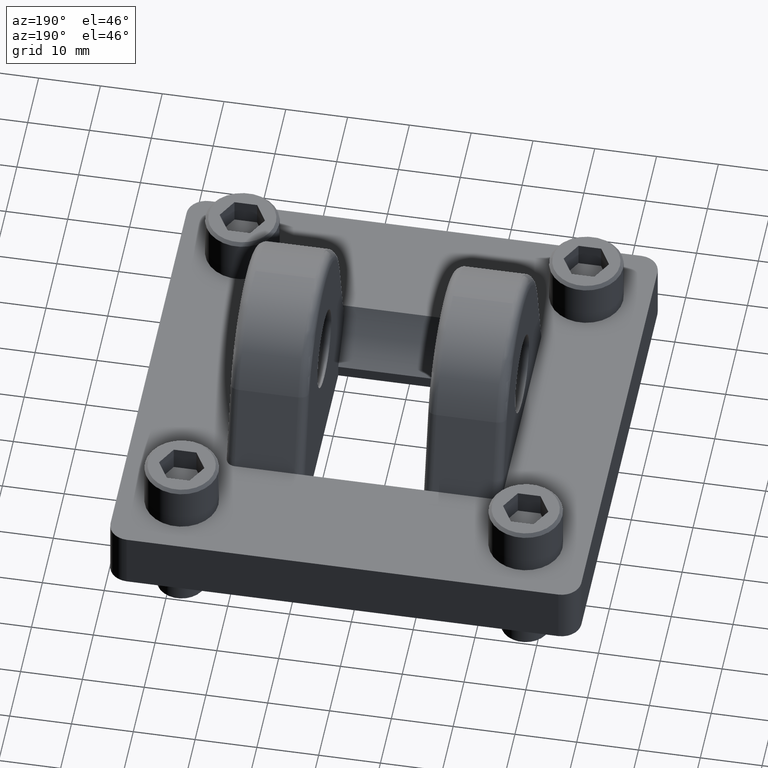
[diagram: clean part render]
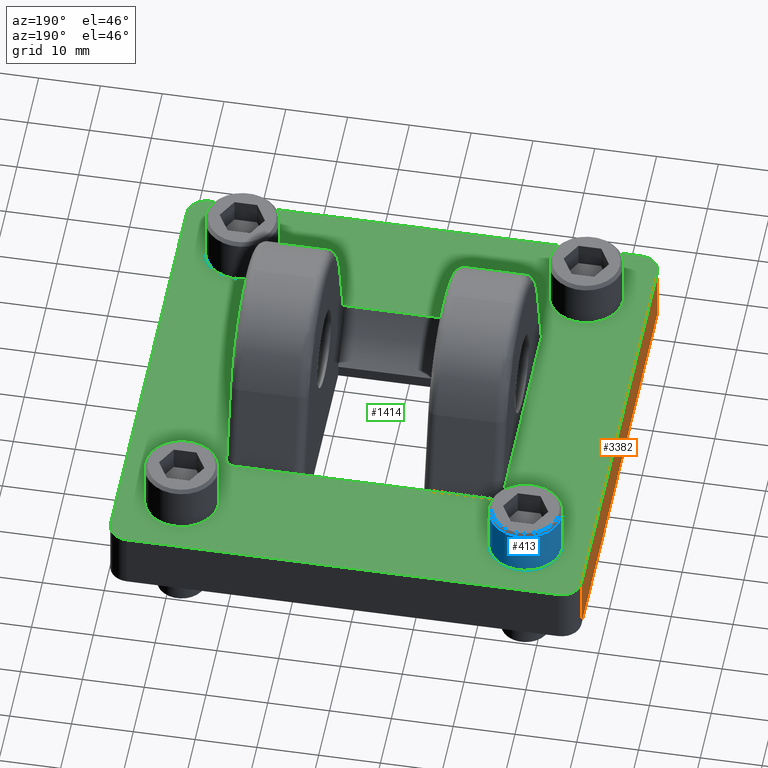
[diagram: same view with three faces highlighted in distinct colors, each labeled with its STEP entity id]
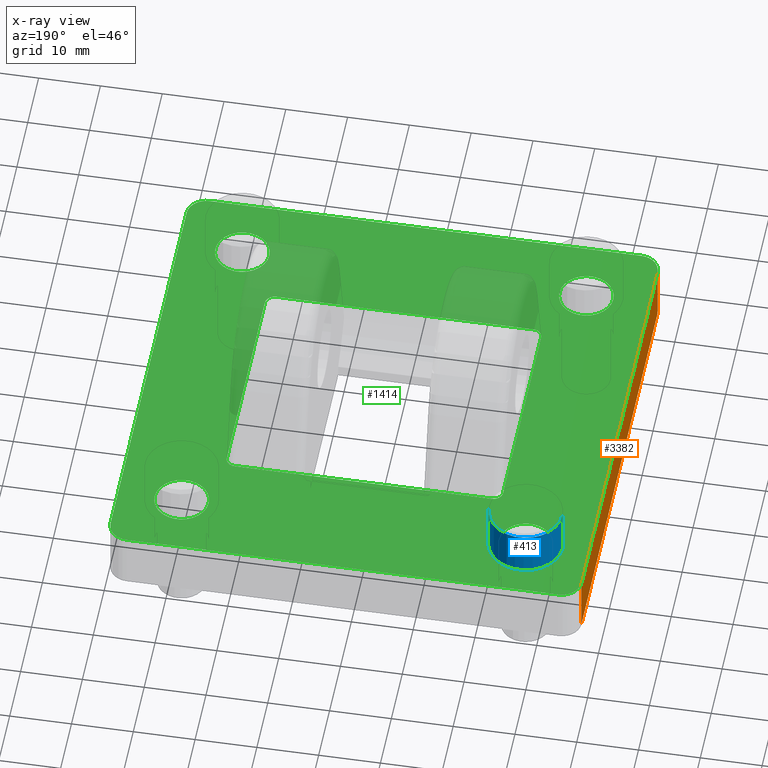
[diagram: x-ray of the same camera — body ghosted, the three highlighted faces saturated]
A machine part, auxiliary view with three faces highlighted in distinct colors.
The next image is the same camera in x-ray (body ghosted, the three faces saturated) — at least one of them is partly hidden behind the body in this view.
Their STEP definitions:

[orange] entity #3382 — the highlighted planar face has unit normal (1, 0, 0).
#51 = VECTOR ( 'NONE', #1032, 39.37007874015748143 ) ;
#59 = CARTESIAN_POINT ( 'NONE',  ( -1.500000000000000222, -1.500000000000000222, 0.3750000000000000555 ) ) ;
#97 = DIRECTION ( 'NONE',  ( -0.0000000000000000000, -1.000000000000000000, -0.0000000000000000000 ) ) ;
#185 = DIRECTION ( 'NONE',  ( 0.0000000000000000000, 0.0000000000000000000, -1.000000000000000000 ) ) ;
#221 = VECTOR ( 'NONE', #185, 39.37007874015748143 ) ;
#339 = CARTESIAN_POINT ( 'NONE',  ( -1.500000000000000222, -1.500000000000000222, 0.3750000000000000555 ) ) ;
#590 = DIRECTION ( 'NONE',  ( 0.0000000000000000000, 0.0000000000000000000, -1.000000000000000000 ) ) ;
#809 = DIRECTION ( 'NONE',  ( -0.0000000000000000000, -1.000000000000000000, -0.0000000000000000000 ) ) ;
#820 = ORIENTED_EDGE ( 'NONE', *, *, #2830, .T. ) ;
#1032 = DIRECTION ( 'NONE',  ( -0.0000000000000000000, -0.0000000000000000000, 1.000000000000000000 ) ) ;
#1142 = AXIS2_PLACEMENT_3D ( 'NONE', #339, #2022, #590 ) ;
#1157 = VERTEX_POINT ( 'NONE', #1977 ) ;
#1364 = FACE_OUTER_BOUND ( 'NONE', #1936, .T. ) ;
#1368 = VERTEX_POINT ( 'NONE', #2534 ) ;
#1578 = EDGE_CURVE ( 'NONE', #3034, #1157, #2841, .T. ) ;
#1661 = CARTESIAN_POINT ( 'NONE',  ( -1.500000000000000222, -1.375000000000000222, 0.3750000000000000555 ) ) ;
#1688 = CARTESIAN_POINT ( 'NONE',  ( -1.500000000000000222, -1.500000000000000222, 0.0000000000000000000 ) ) ;
#1761 = LINE ( 'NONE', #59, #2094 ) ;
#1790 = VECTOR ( 'NONE', #809, 39.37007874015748143 ) ;
#1936 = EDGE_LOOP ( 'NONE', ( #3093, #2221, #1960, #820 ) ) ;
#1943 = LINE ( 'NONE', #2975, #221 ) ;
#1960 = ORIENTED_EDGE ( 'NONE', *, *, #2673, .F. ) ;
#1977 = CARTESIAN_POINT ( 'NONE',  ( -1.500000000000000222, -1.375000000000000222, 0.0000000000000000000 ) ) ;
#2022 = DIRECTION ( 'NONE',  ( 1.000000000000000000, 0.0000000000000000000, 0.0000000000000000000 ) ) ;
#2094 = VECTOR ( 'NONE', #97, 39.37007874015748143 ) ;
#2221 = ORIENTED_EDGE ( 'NONE', *, *, #2857, .T. ) ;
#2534 = CARTESIAN_POINT ( 'NONE',  ( -1.500000000000000222, -1.375000000000000222, 0.3750000000000000555 ) ) ;
#2594 = PLANE ( 'NONE',  #1142 ) ;
#2673 = EDGE_CURVE ( 'NONE', #2735, #1368, #1761, .T. ) ;
#2735 = VERTEX_POINT ( 'NONE', #3047 ) ;
#2830 = EDGE_CURVE ( 'NONE', #2735, #3034, #1943, .T. ) ;
#2841 = LINE ( 'NONE', #1688, #1790 ) ;
#2857 = EDGE_CURVE ( 'NONE', #1157, #1368, #3229, .T. ) ;
#2975 = CARTESIAN_POINT ( 'NONE',  ( -1.500000000000000222, 1.375000000000000222, 0.3750000000000000555 ) ) ;
#3034 = VERTEX_POINT ( 'NONE', #3384 ) ;
#3047 = CARTESIAN_POINT ( 'NONE',  ( -1.500000000000000222, 1.374999999999999112, 0.3750000000000000555 ) ) ;
#3093 = ORIENTED_EDGE ( 'NONE', *, *, #1578, .T. ) ;
#3229 = LINE ( 'NONE', #1661, #51 ) ;
#3382 = ADVANCED_FACE ( 'NONE', ( #1364 ), #2594, .F. ) ;
#3384 = CARTESIAN_POINT ( 'NONE',  ( -1.500000000000000222, 1.374999999999999112, 0.0000000000000000000 ) ) ;

[blue] entity #413 — the highlighted cylindrical surface (partial cylindrical patch) has radius 5.9563 mm, axis along (-0, -0, -1).
#215 = CYLINDRICAL_SURFACE ( 'NONE', #826, 0.2345000000000000417 ) ;
#218 = VERTEX_POINT ( 'NONE', #2921 ) ;
#351 = CARTESIAN_POINT ( 'NONE',  ( -1.330500000000000238, 1.096000000000000085, 0.6870000000000000551 ) ) ;
#380 = VERTEX_POINT ( 'NONE', #1104 ) ;
#386 = DIRECTION ( 'NONE',  ( -0.0000000000000000000, -0.0000000000000000000, -1.000000000000000000 ) ) ;
#413 = ADVANCED_FACE ( 'NONE', ( #3271 ), #215, .T. ) ;
#677 = AXIS2_PLACEMENT_3D ( 'NONE', #770, #3326, #2215 ) ;
#770 = CARTESIAN_POINT ( 'NONE',  ( -1.096000000000000085, 1.096000000000000085, 0.3750000000000000555 ) ) ;
#826 = AXIS2_PLACEMENT_3D ( 'NONE', #3606, #1609, #1951 ) ;
#861 = DIRECTION ( 'NONE',  ( -0.0000000000000000000, -0.0000000000000000000, -1.000000000000000000 ) ) ;
#932 = ORIENTED_EDGE ( 'NONE', *, *, #3280, .T. ) ;
#997 = DIRECTION ( 'NONE',  ( 0.0000000000000000000, 0.0000000000000000000, -1.000000000000000000 ) ) ;
#1104 = CARTESIAN_POINT ( 'NONE',  ( -1.330500000000000238, 1.096000000000000085, 0.6670000000000000373 ) ) ;
#1134 = CARTESIAN_POINT ( 'NONE',  ( -0.8615000000000000435, 1.096000000000000085, 0.6870000000000000551 ) ) ;
#1296 = CARTESIAN_POINT ( 'NONE',  ( -1.096000000000000085, 1.096000000000000085, 0.6670000000000000373 ) ) ;
#1322 = ORIENTED_EDGE ( 'NONE', *, *, #3494, .F. ) ;
#1353 = VERTEX_POINT ( 'NONE', #2570 ) ;
#1477 = CIRCLE ( 'NONE', #2130, 0.2345000000000000417 ) ;
#1601 = VECTOR ( 'NONE', #861, 39.37007874015748143 ) ;
#1609 = DIRECTION ( 'NONE',  ( -0.0000000000000000000, -0.0000000000000000000, -1.000000000000000000 ) ) ;
#1611 = EDGE_CURVE ( 'NONE', #218, #2116, #3033, .T. ) ;
#1951 = DIRECTION ( 'NONE',  ( -1.000000000000000000, 0.0000000000000000000, 0.0000000000000000000 ) ) ;
#2002 = CARTESIAN_POINT ( 'NONE',  ( -0.8615000000000000435, 1.096000000000000085, 0.3750000000000000555 ) ) ;
#2047 = VECTOR ( 'NONE', #386, 39.37007874015748143 ) ;
#2116 = VERTEX_POINT ( 'NONE', #2002 ) ;
#2130 = AXIS2_PLACEMENT_3D ( 'NONE', #1296, #997, #2141 ) ;
#2141 = DIRECTION ( 'NONE',  ( 1.000000000000000000, 0.0000000000000000000, 0.0000000000000000000 ) ) ;
#2215 = DIRECTION ( 'NONE',  ( 1.000000000000000000, 0.0000000000000000000, 0.0000000000000000000 ) ) ;
#2418 = EDGE_CURVE ( 'NONE', #380, #218, #1477, .T. ) ;
#2506 = CIRCLE ( 'NONE', #677, 0.2345000000000000417 ) ;
#2570 = CARTESIAN_POINT ( 'NONE',  ( -1.330500000000000238, 1.096000000000000085, 0.3750000000000000555 ) ) ;
#2699 = ORIENTED_EDGE ( 'NONE', *, *, #1611, .T. ) ;
#2828 = LINE ( 'NONE', #351, #2047 ) ;
#2921 = CARTESIAN_POINT ( 'NONE',  ( -0.8615000000000000435, 1.096000000000000085, 0.6670000000000000373 ) ) ;
#2992 = EDGE_LOOP ( 'NONE', ( #3114, #2699, #932, #1322 ) ) ;
#3033 = LINE ( 'NONE', #1134, #1601 ) ;
#3114 = ORIENTED_EDGE ( 'NONE', *, *, #2418, .T. ) ;
#3271 = FACE_OUTER_BOUND ( 'NONE', #2992, .T. ) ;
#3280 = EDGE_CURVE ( 'NONE', #2116, #1353, #2506, .T. ) ;
#3326 = DIRECTION ( 'NONE',  ( 0.0000000000000000000, 0.0000000000000000000, 1.000000000000000000 ) ) ;
#3494 = EDGE_CURVE ( 'NONE', #380, #1353, #2828, .T. ) ;
#3606 = CARTESIAN_POINT ( 'NONE',  ( -1.096000000000000085, 1.096000000000000085, 0.6870000000000000551 ) ) ;

[green] entity #1414 — the highlighted planar face has unit normal (0, 0, -1).
#2 = DIRECTION ( 'NONE',  ( -1.000000000000000000, -0.0000000000000000000, -0.0000000000000000000 ) ) ;
#12 =( BOUNDED_CURVE ( )  B_SPLINE_CURVE ( 3, ( #776, #1917, #2479, #849 ),
 .UNSPECIFIED., .F., .T. ) 
 B_SPLINE_CURVE_WITH_KNOTS ( ( 4, 4 ),
 ( 1.570796326794898778, 3.141592653589793116 ),
 .UNSPECIFIED. ) 
 CURVE ( )  GEOMETRIC_REPRESENTATION_ITEM ( )  RATIONAL_B_SPLINE_CURVE ( ( 1.000000000000000000, 0.8047378541243654926, 0.8047378541243654926, 1.000000000000000000 ) ) 
 REPRESENTATION_ITEM ( '' )  );
#34 = VECTOR ( 'NONE', #398, 39.37007874015748143 ) ;
#49 = CARTESIAN_POINT ( 'NONE',  ( 1.374999999999999112, 1.500000000000000222, 0.3750000000000000555 ) ) ;
#56 = CARTESIAN_POINT ( 'NONE',  ( -0.9241250000000005294, 1.096000000000000085, 0.3750000000000000555 ) ) ;
#59 = CARTESIAN_POINT ( 'NONE',  ( -1.500000000000000222, -1.500000000000000222, 0.3750000000000000555 ) ) ;
#88 = DIRECTION ( 'NONE',  ( 1.000000000000000000, 0.0000000000000000000, 0.0000000000000000000 ) ) ;
#92 = LINE ( 'NONE', #3407, #3506 ) ;
#97 = DIRECTION ( 'NONE',  ( -0.0000000000000000000, -1.000000000000000000, -0.0000000000000000000 ) ) ;
#137 = DIRECTION ( 'NONE',  ( 1.000000000000000000, -0.0000000000000000000, -0.0000000000000000000 ) ) ;
#142 = CARTESIAN_POINT ( 'NONE',  ( -1.375000000000000222, 1.500000000000000222, 0.3750000000000000555 ) ) ;
#143 = CIRCLE ( 'NONE', #1802, 0.1718749999999997780 ) ;
#157 = CARTESIAN_POINT ( 'NONE',  ( 0.8199999999999999512, -0.7500000000000001110, 0.3750000000000001110 ) ) ;
#161 = EDGE_CURVE ( 'NONE', #3500, #1244, #672, .T. ) ;
#167 = EDGE_CURVE ( 'NONE', #1244, #3500, #3515, .T. ) ;
#180 = VERTEX_POINT ( 'NONE', #3258 ) ;
#184 = EDGE_CURVE ( 'NONE', #2777, #3004, #143, .T. ) ;
#187 = CARTESIAN_POINT ( 'NONE',  ( 1.374999999999999112, -1.500000000000000222, 0.3750000000000000555 ) ) ;
#191 = EDGE_CURVE ( 'NONE', #3406, #801, #3196, .T. ) ;
#195 = VECTOR ( 'NONE', #3191, 39.37007874015748143 ) ;
#209 = ORIENTED_EDGE ( 'NONE', *, *, #1119, .F. ) ;
#210 = ORIENTED_EDGE ( 'NONE', *, *, #521, .T. ) ;
#224 = VERTEX_POINT ( 'NONE', #142 ) ;
#240 = DIRECTION ( 'NONE',  ( 0.0000000000000000000, 1.000000000000000000, 0.0000000000000000000 ) ) ;
#264 = AXIS2_PLACEMENT_3D ( 'NONE', #2167, #1251, #2427 ) ;
#284 = EDGE_CURVE ( 'NONE', #2357, #1825, #296, .T. ) ;
#286 = CARTESIAN_POINT ( 'NONE',  ( -0.4399999999999999467, 0.7500000000000003331, 0.3750000000000000555 ) ) ;
#296 = LINE ( 'NONE', #3301, #2659 ) ;
#315 = CARTESIAN_POINT ( 'NONE',  ( -0.8800000000000000044, -0.0000000000000000000, 0.3750000000000000555 ) ) ;
#336 = DIRECTION ( 'NONE',  ( -1.000000000000000000, 0.0000000000000000000, 0.0000000000000000000 ) ) ;
#340 = DIRECTION ( 'NONE',  ( -1.000000000000000000, 0.0000000000000000000, 0.0000000000000000000 ) ) ;
#342 = CARTESIAN_POINT ( 'NONE',  ( -0.8199999999999998401, 0.7500000000000002220, 0.3750000000000001110 ) ) ;
#397 = CARTESIAN_POINT ( 'NONE',  ( 1.267874999999999863, -1.096000000000000307, 0.3750000000000000555 ) ) ;
#398 = DIRECTION ( 'NONE',  ( -1.000000000000000000, -0.0000000000000000000, -0.0000000000000000000 ) ) ;
#400 = EDGE_LOOP ( 'NONE', ( #1559, #1874 ) ) ;
#407 = ORIENTED_EDGE ( 'NONE', *, *, #2859, .T. ) ;
#422 = AXIS2_PLACEMENT_3D ( 'NONE', #1819, #2309, #3466 ) ;
#428 = CARTESIAN_POINT ( 'NONE',  ( -0.8199999999999998401, -0.7500000000000001110, 0.3750000000000001110 ) ) ;
#432 = VERTEX_POINT ( 'NONE', #3564 ) ;
#485 = CARTESIAN_POINT ( 'NONE',  ( -0.8199999999999998401, -0.7500000000000001110, 0.3750000000000001110 ) ) ;
#487 = VERTEX_POINT ( 'NONE', #3296 ) ;
#501 = EDGE_LOOP ( 'NONE', ( #2607, #3217 ) ) ;
#521 = EDGE_CURVE ( 'NONE', #2227, #612, #2017, .T. ) ;
#526 = VERTEX_POINT ( 'NONE', #1453 ) ;
#561 = AXIS2_PLACEMENT_3D ( 'NONE', #1526, #2676, #3465 ) ;
#609 = DIRECTION ( 'NONE',  ( -1.000000000000000000, -0.0000000000000000000, -0.0000000000000000000 ) ) ;
#612 = VERTEX_POINT ( 'NONE', #2040 ) ;
#672 = CIRCLE ( 'NONE', #264, 0.1718749999999997780 ) ;
#685 = ORIENTED_EDGE ( 'NONE', *, *, #161, .T. ) ;
#729 = VECTOR ( 'NONE', #609, 39.37007874015748143 ) ;
#740 = VERTEX_POINT ( 'NONE', #2102 ) ;
#747 = CARTESIAN_POINT ( 'NONE',  ( -1.267874999999999863, -1.096000000000000307, 0.3750000000000000555 ) ) ;
#761 = CARTESIAN_POINT ( 'NONE',  ( -0.8800000000000000044, -0.6878115294937452440, 0.3750000000000000555 ) ) ;
#776 = CARTESIAN_POINT ( 'NONE',  ( -0.8800000000000000044, 0.6878115294937456881, 0.3750000000000000555 ) ) ;
#787 = AXIS2_PLACEMENT_3D ( 'NONE', #2286, #1090, #3358 ) ;
#801 = VERTEX_POINT ( 'NONE', #428 ) ;
#849 = CARTESIAN_POINT ( 'NONE',  ( -0.8199999999999998401, 0.7500000000000002220, 0.3750000000000001110 ) ) ;
#854 = EDGE_CURVE ( 'NONE', #740, #1825, #12, .T. ) ;
#858 = DIRECTION ( 'NONE',  ( 0.0000000000000000000, 0.0000000000000000000, -1.000000000000000000 ) ) ;
#883 = ORIENTED_EDGE ( 'NONE', *, *, #2105, .T. ) ;
#902 = ORIENTED_EDGE ( 'NONE', *, *, #1447, .F. ) ;
#903 = DIRECTION ( 'NONE',  ( -1.000000000000000000, -0.0000000000000000000, -0.0000000000000000000 ) ) ;
#916 = DIRECTION ( 'NONE',  ( -0.0000000000000000000, -0.0000000000000000000, 1.000000000000000000 ) ) ;
#917 = LINE ( 'NONE', #1470, #1984 ) ;
#922 = CARTESIAN_POINT ( 'NONE',  ( -1.375000000000000222, -1.500000000000000222, 0.3750000000000000555 ) ) ;
#948 = FACE_BOUND ( 'NONE', #501, .T. ) ;
#966 = EDGE_CURVE ( 'NONE', #1077, #3542, #92, .T. ) ;
#972 = EDGE_CURVE ( 'NONE', #1368, #991, #1671, .T. ) ;
#980 = DIRECTION ( 'NONE',  ( 0.0000000000000000000, 0.0000000000000000000, -1.000000000000000000 ) ) ;
#991 = VERTEX_POINT ( 'NONE', #922 ) ;
#1013 = CARTESIAN_POINT ( 'NONE',  ( -1.096000000000000085, 1.096000000000000085, 0.3750000000000000555 ) ) ;
#1067 = AXIS2_PLACEMENT_3D ( 'NONE', #2245, #2740, #1391 ) ;
#1077 = VERTEX_POINT ( 'NONE', #157 ) ;
#1090 = DIRECTION ( 'NONE',  ( 0.0000000000000000000, 0.0000000000000000000, -1.000000000000000000 ) ) ;
#1091 = LINE ( 'NONE', #315, #1760 ) ;
#1092 = CARTESIAN_POINT ( 'NONE',  ( 1.096000000000000085, 1.096000000000000085, 0.3750000000000000555 ) ) ;
#1119 = EDGE_CURVE ( 'NONE', #180, #432, #3170, .T. ) ;
#1120 =( BOUNDED_CURVE ( )  B_SPLINE_CURVE ( 3, ( #1656, #1697, #2201, #3303 ),
 .UNSPECIFIED., .F., .T. ) 
 B_SPLINE_CURVE_WITH_KNOTS ( ( 4, 4 ),
 ( 1.570796326794896558, 3.141592653589793116 ),
 .UNSPECIFIED. ) 
 CURVE ( )  GEOMETRIC_REPRESENTATION_ITEM ( )  RATIONAL_B_SPLINE_CURVE ( ( 1.000000000000000000, 0.8047378541243649375, 0.8047378541243649375, 1.000000000000000000 ) ) 
 REPRESENTATION_ITEM ( '' )  );
#1132 = DIRECTION ( 'NONE',  ( 1.000000000000000000, -0.0000000000000000000, -0.0000000000000000000 ) ) ;
#1158 = ORIENTED_EDGE ( 'NONE', *, *, #3007, .T. ) ;
#1190 = DIRECTION ( 'NONE',  ( -1.000000000000000000, 0.0000000000000000000, 0.0000000000000000000 ) ) ;
#1194 = CIRCLE ( 'NONE', #561, 0.1249999999999999029 ) ;
#1208 = EDGE_CURVE ( 'NONE', #526, #2126, #2654, .T. ) ;
#1210 = CARTESIAN_POINT ( 'NONE',  ( 1.267874999999999863, 1.096000000000000085, 0.3750000000000000555 ) ) ;
#1224 = EDGE_CURVE ( 'NONE', #180, #1077, #1120, .T. ) ;
#1243 = CARTESIAN_POINT ( 'NONE',  ( 0.8800000000000000044, 0.0000000000000000000, 0.3750000000000000555 ) ) ;
#1244 = VERTEX_POINT ( 'NONE', #56 ) ;
#1251 = DIRECTION ( 'NONE',  ( 0.0000000000000000000, 0.0000000000000000000, -1.000000000000000000 ) ) ;
#1276 = CARTESIAN_POINT ( 'NONE',  ( 0.8800000000000000044, 0.7500000000000002220, 0.3750000000000001110 ) ) ;
#1293 = AXIS2_PLACEMENT_3D ( 'NONE', #3441, #3389, #1190 ) ;
#1302 = ORIENTED_EDGE ( 'NONE', *, *, #167, .T. ) ;
#1337 = LINE ( 'NONE', #3516, #2107 ) ;
#1356 = DIRECTION ( 'NONE',  ( -0.0000000000000000000, -0.0000000000000000000, 1.000000000000000000 ) ) ;
#1368 = VERTEX_POINT ( 'NONE', #2534 ) ;
#1391 = DIRECTION ( 'NONE',  ( -1.000000000000000000, 0.0000000000000000000, 0.0000000000000000000 ) ) ;
#1411 = DIRECTION ( 'NONE',  ( 0.0000000000000000000, 0.0000000000000000000, -1.000000000000000000 ) ) ;
#1414 = ADVANCED_FACE ( 'NONE', ( #2581, #2644, #948, #3125, #3160, #3181 ), #1468, .F. ) ;
#1447 = EDGE_CURVE ( 'NONE', #2642, #3470, #1885, .T. ) ;
#1453 = CARTESIAN_POINT ( 'NONE',  ( 0.9241250000000005294, -1.096000000000000307, 0.3750000000000000555 ) ) ;
#1468 = PLANE ( 'NONE',  #422 ) ;
#1470 = CARTESIAN_POINT ( 'NONE',  ( -1.500000000000000222, -1.500000000000000222, 0.3750000000000000555 ) ) ;
#1488 = CARTESIAN_POINT ( 'NONE',  ( 0.4399999999999999467, 0.7500000000000002220, 0.3750000000000001110 ) ) ;
#1507 = CARTESIAN_POINT ( 'NONE',  ( 0.4400000000000000022, -0.7500000000000002220, 0.3750000000000000555 ) ) ;
#1526 = CARTESIAN_POINT ( 'NONE',  ( 1.375000000000000222, 1.375000000000000222, 0.3750000000000000555 ) ) ;
#1538 = EDGE_CURVE ( 'NONE', #487, #2930, #3568, .T. ) ;
#1559 = ORIENTED_EDGE ( 'NONE', *, *, #1208, .T. ) ;
#1574 = CARTESIAN_POINT ( 'NONE',  ( 0.8800000000000000044, -0.7500000000000001110, 0.3750000000000001110 ) ) ;
#1598 = DIRECTION ( 'NONE',  ( 0.0000000000000000000, 1.000000000000000000, 0.0000000000000000000 ) ) ;
#1608 = VERTEX_POINT ( 'NONE', #49 ) ;
#1630 =( BOUNDED_CURVE ( )  B_SPLINE_CURVE ( 3, ( #485, #2990, #1897, #761 ),
 .UNSPECIFIED., .F., .T. ) 
 B_SPLINE_CURVE_WITH_KNOTS ( ( 4, 4 ),
 ( -2.664535259100375697E-15, 1.570796326794896558 ),
 .UNSPECIFIED. ) 
 CURVE ( )  GEOMETRIC_REPRESENTATION_ITEM ( )  RATIONAL_B_SPLINE_CURVE ( ( 1.000000000000000000, 0.8047378541243643824, 0.8047378541243643824, 1.000000000000000000 ) ) 
 REPRESENTATION_ITEM ( '' )  );
#1637 = ORIENTED_EDGE ( 'NONE', *, *, #3040, .T. ) ;
#1656 = CARTESIAN_POINT ( 'NONE',  ( 0.8800000000000000044, -0.6878115294937454660, 0.3750000000000000555 ) ) ;
#1671 = CIRCLE ( 'NONE', #1293, 0.1249999999999999029 ) ;
#1674 = ORIENTED_EDGE ( 'NONE', *, *, #972, .T. ) ;
#1697 = CARTESIAN_POINT ( 'NONE',  ( 0.8800000000000000044, -0.7242406920930701819, 0.3750000000000001110 ) ) ;
#1698 = EDGE_CURVE ( 'NONE', #2642, #432, #2649, .T. ) ;
#1720 = CARTESIAN_POINT ( 'NONE',  ( 0.8199999999999999512, 0.7500000000000002220, 0.3750000000000001110 ) ) ;
#1741 = CARTESIAN_POINT ( 'NONE',  ( -0.3799999999999999489, 0.7500000000000003331, 0.3750000000000000555 ) ) ;
#1748 = CIRCLE ( 'NONE', #787, 0.1718749999999997780 ) ;
#1760 = VECTOR ( 'NONE', #240, 39.37007874015748143 ) ;
#1761 = LINE ( 'NONE', #59, #2094 ) ;
#1766 = CARTESIAN_POINT ( 'NONE',  ( 1.375000000000000222, -1.375000000000000222, 0.3750000000000000555 ) ) ;
#1777 = ORIENTED_EDGE ( 'NONE', *, *, #1224, .T. ) ;
#1802 = AXIS2_PLACEMENT_3D ( 'NONE', #1813, #2908, #2411 ) ;
#1813 = CARTESIAN_POINT ( 'NONE',  ( -1.096000000000000085, -1.096000000000000307, 0.3750000000000000555 ) ) ;
#1819 = CARTESIAN_POINT ( 'NONE',  ( 0.0000000000000000000, 0.0000000000000000000, 0.3750000000000000555 ) ) ;
#1825 = VERTEX_POINT ( 'NONE', #342 ) ;
#1862 = DIRECTION ( 'NONE',  ( 0.0000000000000000000, 0.0000000000000000000, -1.000000000000000000 ) ) ;
#1865 = AXIS2_PLACEMENT_3D ( 'NONE', #3478, #980, #3462 ) ;
#1874 = ORIENTED_EDGE ( 'NONE', *, *, #2125, .T. ) ;
#1885 = LINE ( 'NONE', #1276, #2605 ) ;
#1897 = CARTESIAN_POINT ( 'NONE',  ( -0.8799999999999997824, -0.7242406920930701819, 0.3750000000000000555 ) ) ;
#1898 = ORIENTED_EDGE ( 'NONE', *, *, #2673, .T. ) ;
#1917 = CARTESIAN_POINT ( 'NONE',  ( -0.8799999999999996714, 0.7242406920930702929, 0.3750000000000000555 ) ) ;
#1921 = CIRCLE ( 'NONE', #3188, 0.1718749999999996392 ) ;
#1944 = CARTESIAN_POINT ( 'NONE',  ( -1.375000000000000222, 1.375000000000000222, 0.3750000000000000555 ) ) ;
#1984 = VECTOR ( 'NONE', #88, 39.37007874015748143 ) ;
#2004 = CARTESIAN_POINT ( 'NONE',  ( 0.8800000000000000044, 0.7242406920930701819, 0.3750000000000001110 ) ) ;
#2015 = CARTESIAN_POINT ( 'NONE',  ( 0.8199999999999999512, 0.7500000000000002220, 0.3750000000000001110 ) ) ;
#2017 = CIRCLE ( 'NONE', #2592, 0.1249999999999999029 ) ;
#2028 = AXIS2_PLACEMENT_3D ( 'NONE', #1092, #1411, #2231 ) ;
#2040 = CARTESIAN_POINT ( 'NONE',  ( 1.500000000000000222, -1.375000000000000222, 0.3750000000000000555 ) ) ;
#2094 = VECTOR ( 'NONE', #97, 39.37007874015748143 ) ;
#2098 = VECTOR ( 'NONE', #1132, 39.37007874015748143 ) ;
#2102 = CARTESIAN_POINT ( 'NONE',  ( -0.8800000000000000044, 0.6878115294937456881, 0.3750000000000000555 ) ) ;
#2105 = EDGE_CURVE ( 'NONE', #2357, #3470, #3104, .T. ) ;
#2107 = VECTOR ( 'NONE', #1598, 39.37007874015748143 ) ;
#2125 = EDGE_CURVE ( 'NONE', #2126, #526, #1921, .T. ) ;
#2126 = VERTEX_POINT ( 'NONE', #397 ) ;
#2146 = ORIENTED_EDGE ( 'NONE', *, *, #2950, .F. ) ;
#2161 = ORIENTED_EDGE ( 'NONE', *, *, #2597, .T. ) ;
#2167 = CARTESIAN_POINT ( 'NONE',  ( -1.096000000000000085, 1.096000000000000085, 0.3750000000000000555 ) ) ;
#2171 = DIRECTION ( 'NONE',  ( -1.000000000000000000, -0.0000000000000000000, -0.0000000000000000000 ) ) ;
#2197 = ORIENTED_EDGE ( 'NONE', *, *, #854, .T. ) ;
#2201 = CARTESIAN_POINT ( 'NONE',  ( 0.8551471862576142113, -0.7500000000000002220, 0.3750000000000001110 ) ) ;
#2219 = ORIENTED_EDGE ( 'NONE', *, *, #2555, .T. ) ;
#2227 = VERTEX_POINT ( 'NONE', #187 ) ;
#2231 = DIRECTION ( 'NONE',  ( -1.000000000000000000, 0.0000000000000000000, 0.0000000000000000000 ) ) ;
#2245 = CARTESIAN_POINT ( 'NONE',  ( 1.096000000000000085, -1.096000000000000307, 0.3750000000000000555 ) ) ;
#2248 = DIRECTION ( 'NONE',  ( -1.000000000000000000, 2.622574073917694583E-14, 0.0000000000000000000 ) ) ;
#2275 = CARTESIAN_POINT ( 'NONE',  ( 0.8551471862576142113, 0.7500000000000003331, 0.3750000000000001110 ) ) ;
#2286 = CARTESIAN_POINT ( 'NONE',  ( -1.096000000000000085, -1.096000000000000307, 0.3750000000000000555 ) ) ;
#2307 = CARTESIAN_POINT ( 'NONE',  ( -1.267874999999999863, 1.096000000000000085, 0.3750000000000000555 ) ) ;
#2309 = DIRECTION ( 'NONE',  ( 0.0000000000000000000, 0.0000000000000000000, -1.000000000000000000 ) ) ;
#2312 = VERTEX_POINT ( 'NONE', #3362 ) ;
#2341 = AXIS2_PLACEMENT_3D ( 'NONE', #1944, #1356, #2248 ) ;
#2344 = ORIENTED_EDGE ( 'NONE', *, *, #184, .T. ) ;
#2357 = VERTEX_POINT ( 'NONE', #286 ) ;
#2363 = ORIENTED_EDGE ( 'NONE', *, *, #3113, .T. ) ;
#2411 = DIRECTION ( 'NONE',  ( -1.000000000000000000, 0.0000000000000000000, 0.0000000000000000000 ) ) ;
#2427 = DIRECTION ( 'NONE',  ( -1.000000000000000000, 0.0000000000000000000, 0.0000000000000000000 ) ) ;
#2479 = CARTESIAN_POINT ( 'NONE',  ( -0.8551471862576141003, 0.7500000000000003331, 0.3750000000000000555 ) ) ;
#2534 = CARTESIAN_POINT ( 'NONE',  ( -1.500000000000000222, -1.375000000000000222, 0.3750000000000000555 ) ) ;
#2555 = EDGE_CURVE ( 'NONE', #224, #2735, #3426, .T. ) ;
#2581 = FACE_BOUND ( 'NONE', #400, .T. ) ;
#2582 = LINE ( 'NONE', #3435, #729 ) ;
#2592 = AXIS2_PLACEMENT_3D ( 'NONE', #1766, #916, #340 ) ;
#2597 = EDGE_CURVE ( 'NONE', #2312, #740, #1091, .T. ) ;
#2605 = VECTOR ( 'NONE', #2171, 39.37007874015748143 ) ;
#2607 = ORIENTED_EDGE ( 'NONE', *, *, #1538, .T. ) ;
#2634 = ORIENTED_EDGE ( 'NONE', *, *, #3533, .T. ) ;
#2642 = VERTEX_POINT ( 'NONE', #2015 ) ;
#2644 = FACE_BOUND ( 'NONE', #3318, .T. ) ;
#2649 =( BOUNDED_CURVE ( )  B_SPLINE_CURVE ( 3, ( #1720, #2275, #2004, #3363 ),
 .UNSPECIFIED., .F., .T. ) 
 B_SPLINE_CURVE_WITH_KNOTS ( ( 4, 4 ),
 ( 0.0000000000000000000, 1.570796326794896558 ),
 .UNSPECIFIED. ) 
 CURVE ( )  GEOMETRIC_REPRESENTATION_ITEM ( )  RATIONAL_B_SPLINE_CURVE ( ( 1.000000000000000000, 0.8047378541243649375, 0.8047378541243649375, 1.000000000000000000 ) ) 
 REPRESENTATION_ITEM ( '' )  );
#2654 = CIRCLE ( 'NONE', #1067, 0.1718749999999996392 ) ;
#2659 = VECTOR ( 'NONE', #2, 39.37007874015748143 ) ;
#2669 = LINE ( 'NONE', #3444, #2721 ) ;
#2673 = EDGE_CURVE ( 'NONE', #2735, #1368, #1761, .T. ) ;
#2676 = DIRECTION ( 'NONE',  ( -0.0000000000000000000, -0.0000000000000000000, 1.000000000000000000 ) ) ;
#2703 = DIRECTION ( 'NONE',  ( -1.000000000000000000, 0.0000000000000000000, 0.0000000000000000000 ) ) ;
#2714 = EDGE_CURVE ( 'NONE', #3004, #2777, #1748, .T. ) ;
#2721 = VECTOR ( 'NONE', #137, 39.37007874015748143 ) ;
#2735 = VERTEX_POINT ( 'NONE', #3047 ) ;
#2740 = DIRECTION ( 'NONE',  ( 0.0000000000000000000, 0.0000000000000000000, -1.000000000000000000 ) ) ;
#2756 = ORIENTED_EDGE ( 'NONE', *, *, #966, .T. ) ;
#2777 = VERTEX_POINT ( 'NONE', #2804 ) ;
#2804 = CARTESIAN_POINT ( 'NONE',  ( -0.9241250000000005294, -1.096000000000000307, 0.3750000000000000555 ) ) ;
#2842 = EDGE_LOOP ( 'NONE', ( #902, #3567, #209, #1777, #2756, #2146, #3228, #1158, #2161, #2197, #3169, #883 ) ) ;
#2859 = EDGE_CURVE ( 'NONE', #612, #3413, #1337, .T. ) ;
#2875 = EDGE_LOOP ( 'NONE', ( #3490, #2344 ) ) ;
#2908 = DIRECTION ( 'NONE',  ( 0.0000000000000000000, 0.0000000000000000000, -1.000000000000000000 ) ) ;
#2930 = VERTEX_POINT ( 'NONE', #1210 ) ;
#2950 = EDGE_CURVE ( 'NONE', #3406, #3542, #2669, .T. ) ;
#2990 = CARTESIAN_POINT ( 'NONE',  ( -0.8551471862576142113, -0.7500000000000002220, 0.3750000000000000555 ) ) ;
#3004 = VERTEX_POINT ( 'NONE', #747 ) ;
#3007 = EDGE_CURVE ( 'NONE', #801, #2312, #1630, .T. ) ;
#3040 = EDGE_CURVE ( 'NONE', #1608, #224, #2582, .T. ) ;
#3047 = CARTESIAN_POINT ( 'NONE',  ( -1.500000000000000222, 1.374999999999999112, 0.3750000000000000555 ) ) ;
#3104 = LINE ( 'NONE', #1741, #2098 ) ;
#3113 = EDGE_CURVE ( 'NONE', #991, #2227, #917, .T. ) ;
#3125 = FACE_BOUND ( 'NONE', #2875, .T. ) ;
#3136 = EDGE_LOOP ( 'NONE', ( #2363, #210, #407, #2634, #1637, #2219, #1898, #1674 ) ) ;
#3159 = CARTESIAN_POINT ( 'NONE',  ( 1.500000000000000222, 1.374999999999999112, 0.3750000000000000555 ) ) ;
#3160 = FACE_BOUND ( 'NONE', #2842, .T. ) ;
#3169 = ORIENTED_EDGE ( 'NONE', *, *, #284, .F. ) ;
#3170 = LINE ( 'NONE', #1243, #195 ) ;
#3175 = AXIS2_PLACEMENT_3D ( 'NONE', #1013, #1862, #2703 ) ;
#3181 = FACE_OUTER_BOUND ( 'NONE', #3136, .T. ) ;
#3188 = AXIS2_PLACEMENT_3D ( 'NONE', #3361, #858, #336 ) ;
#3191 = DIRECTION ( 'NONE',  ( 0.0000000000000000000, 1.000000000000000000, 0.0000000000000000000 ) ) ;
#3196 = LINE ( 'NONE', #1574, #34 ) ;
#3199 = EDGE_CURVE ( 'NONE', #2930, #487, #3355, .T. ) ;
#3217 = ORIENTED_EDGE ( 'NONE', *, *, #3199, .T. ) ;
#3228 = ORIENTED_EDGE ( 'NONE', *, *, #191, .T. ) ;
#3258 = CARTESIAN_POINT ( 'NONE',  ( 0.8800000000000000044, -0.6878115294937454660, 0.3750000000000000555 ) ) ;
#3296 = CARTESIAN_POINT ( 'NONE',  ( 0.9241250000000005294, 1.096000000000000085, 0.3750000000000000555 ) ) ;
#3301 = CARTESIAN_POINT ( 'NONE',  ( 0.8800000000000000044, 0.7500000000000002220, 0.3750000000000001110 ) ) ;
#3303 = CARTESIAN_POINT ( 'NONE',  ( 0.8199999999999999512, -0.7500000000000001110, 0.3750000000000001110 ) ) ;
#3318 = EDGE_LOOP ( 'NONE', ( #685, #1302 ) ) ;
#3355 = CIRCLE ( 'NONE', #1865, 0.1718749999999996392 ) ;
#3358 = DIRECTION ( 'NONE',  ( -1.000000000000000000, 0.0000000000000000000, 0.0000000000000000000 ) ) ;
#3361 = CARTESIAN_POINT ( 'NONE',  ( 1.096000000000000085, -1.096000000000000307, 0.3750000000000000555 ) ) ;
#3362 = CARTESIAN_POINT ( 'NONE',  ( -0.8800000000000000044, -0.6878115294937452440, 0.3750000000000000555 ) ) ;
#3363 = CARTESIAN_POINT ( 'NONE',  ( 0.8800000000000000044, 0.6878115294937455770, 0.3750000000000000555 ) ) ;
#3365 = CARTESIAN_POINT ( 'NONE',  ( -0.4400000000000001132, -0.7500000000000001110, 0.3750000000000001110 ) ) ;
#3389 = DIRECTION ( 'NONE',  ( -0.0000000000000000000, -0.0000000000000000000, 1.000000000000000000 ) ) ;
#3406 = VERTEX_POINT ( 'NONE', #3365 ) ;
#3407 = CARTESIAN_POINT ( 'NONE',  ( 0.8800000000000000044, -0.7500000000000001110, 0.3750000000000001110 ) ) ;
#3413 = VERTEX_POINT ( 'NONE', #3159 ) ;
#3426 = CIRCLE ( 'NONE', #2341, 0.1249999999999999029 ) ;
#3435 = CARTESIAN_POINT ( 'NONE',  ( -1.500000000000000222, 1.500000000000000222, 0.3750000000000000555 ) ) ;
#3441 = CARTESIAN_POINT ( 'NONE',  ( -1.375000000000000222, -1.375000000000000222, 0.3750000000000000555 ) ) ;
#3444 = CARTESIAN_POINT ( 'NONE',  ( -0.3799999999999999489, -0.7500000000000002220, 0.3750000000000000555 ) ) ;
#3462 = DIRECTION ( 'NONE',  ( -1.000000000000000000, 0.0000000000000000000, 0.0000000000000000000 ) ) ;
#3465 = DIRECTION ( 'NONE',  ( -1.000000000000000000, 0.0000000000000000000, 0.0000000000000000000 ) ) ;
#3466 = DIRECTION ( 'NONE',  ( -1.000000000000000000, 0.0000000000000000000, -0.0000000000000000000 ) ) ;
#3470 = VERTEX_POINT ( 'NONE', #1488 ) ;
#3478 = CARTESIAN_POINT ( 'NONE',  ( 1.096000000000000085, 1.096000000000000085, 0.3750000000000000555 ) ) ;
#3490 = ORIENTED_EDGE ( 'NONE', *, *, #2714, .T. ) ;
#3500 = VERTEX_POINT ( 'NONE', #2307 ) ;
#3506 = VECTOR ( 'NONE', #903, 39.37007874015748143 ) ;
#3515 = CIRCLE ( 'NONE', #3175, 0.1718749999999997780 ) ;
#3516 = CARTESIAN_POINT ( 'NONE',  ( 1.500000000000000222, -1.500000000000000222, 0.3750000000000000555 ) ) ;
#3533 = EDGE_CURVE ( 'NONE', #3413, #1608, #1194, .T. ) ;
#3542 = VERTEX_POINT ( 'NONE', #1507 ) ;
#3564 = CARTESIAN_POINT ( 'NONE',  ( 0.8800000000000000044, 0.6878115294937455770, 0.3750000000000000555 ) ) ;
#3567 = ORIENTED_EDGE ( 'NONE', *, *, #1698, .T. ) ;
#3568 = CIRCLE ( 'NONE', #2028, 0.1718749999999996392 ) ;